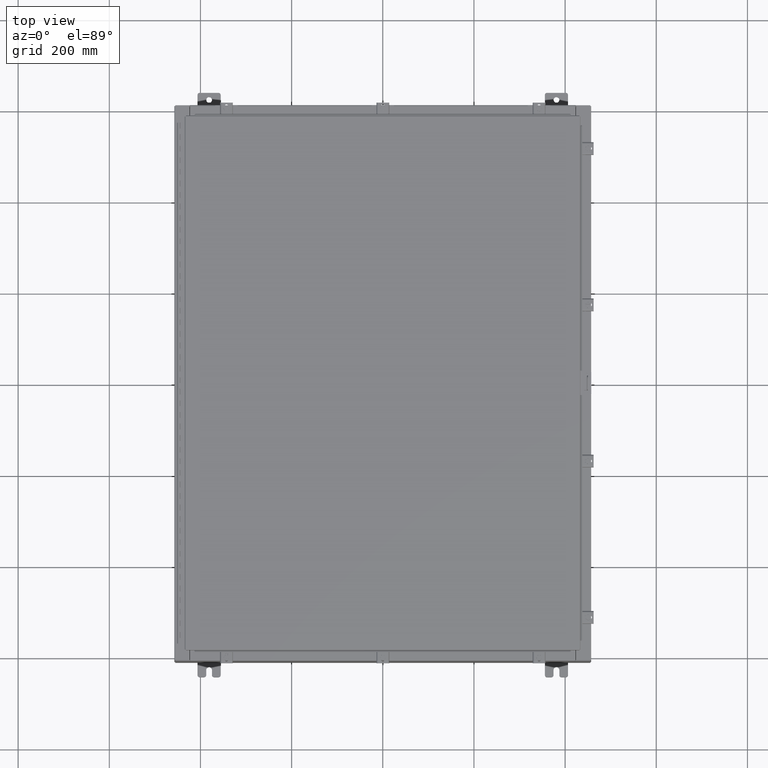
[diagram: clean part render]
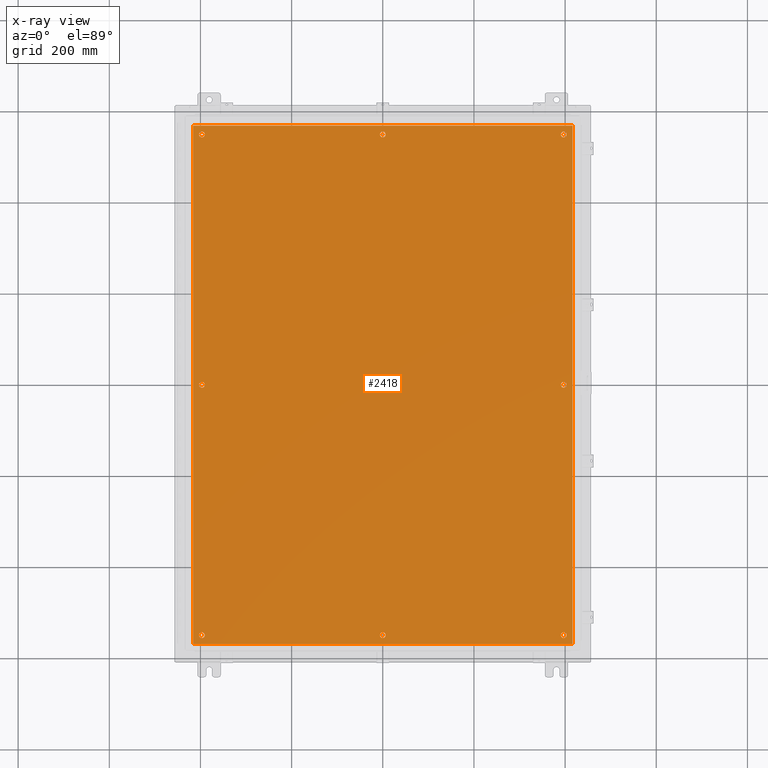
[diagram: x-ray — body ghosted, one internal face saturated and labeled with its STEP entity id]
A machine part, top view, then the same camera in x-ray: the body is ghosted and one INTERNAL B-rep face — a face not visible from any outside direction — is saturated and labeled: STEP entity #2418.
In plain terms, the highlighted planar face has unit normal (0, 0, -1).
Its self-contained STEP definition (entity closure, byte-faithful):
#304 = DIRECTION ( 'NONE',  ( -1.000000000000000000, 0.0000000000000000000, 0.0000000000000000000 ) ) ;
#646 = DIRECTION ( 'NONE',  ( -1.000000000000000000, 0.0000000000000000000, 0.0000000000000000000 ) ) ;
#719 = FACE_BOUND ( 'NONE', #45632, .T. ) ;
#751 = VECTOR ( 'NONE', #18937, 39.37007874015748100 ) ;
#1344 = DIRECTION ( 'NONE',  ( -1.000000000000000000, 0.0000000000000000000, 0.0000000000000000000 ) ) ;
#1751 = CIRCLE ( 'NONE', #25804, 0.2499999999999987000 ) ;
#1990 = DIRECTION ( 'NONE',  ( -1.000000000000000000, 0.0000000000000000000, 0.0000000000000000000 ) ) ;
#2049 = FACE_BOUND ( 'NONE', #36787, .T. ) ;
#2371 = CARTESIAN_POINT ( 'NONE',  ( -15.37500000000000000, -8.298848852119578500E-016, -0.1040000000000000400 ) ) ;
#2418 = ADVANCED_FACE ( 'NONE', ( #2049, #23384, #47493, #12079, #34773, #719, #44824, #33433, #22041 ), #34643, .T. ) ;
#3423 = EDGE_LOOP ( 'NONE', ( #48437, #52146 ) ) ;
#3543 = DIRECTION ( 'NONE',  ( -0.0000000000000000000, -0.0000000000000000000, 1.000000000000000000 ) ) ;
#3985 = CARTESIAN_POINT ( 'NONE',  ( 15.62500000000000200, 2.997136362123521200E-015, -0.1040000000000000400 ) ) ;
#4033 = DIRECTION ( 'NONE',  ( 0.0000000000000000000, -1.000000000000000000, 0.0000000000000000000 ) ) ;
#4282 = CIRCLE ( 'NONE', #29168, 0.2500000000000008900 ) ;
#4411 = VERTEX_POINT ( 'NONE', #30776 ) ;
#5066 = VERTEX_POINT ( 'NONE', #30901 ) ;
#5188 = DIRECTION ( 'NONE',  ( 1.000000000000000000, -0.0000000000000000000, -0.0000000000000000000 ) ) ;
#5797 = ORIENTED_EDGE ( 'NONE', *, *, #11636, .T. ) ;
#6424 = DIRECTION ( 'NONE',  ( -0.0000000000000000000, -0.0000000000000000000, 1.000000000000000000 ) ) ;
#6664 = DIRECTION ( 'NONE',  ( -0.0000000000000000000, -0.0000000000000000000, 1.000000000000000000 ) ) ;
#6931 = LINE ( 'NONE', #38192, #39671 ) ;
#7341 = AXIS2_PLACEMENT_3D ( 'NONE', #39182, #13556, #43470 ) ;
#7983 = VERTEX_POINT ( 'NONE', #8324 ) ;
#8162 = CARTESIAN_POINT ( 'NONE',  ( 0.0000000000000000000, -21.62500000000000400, -0.1040000000000000400 ) ) ;
#8275 = DIRECTION ( 'NONE',  ( -1.000000000000000000, 0.0000000000000000000, 0.0000000000000000000 ) ) ;
#8324 = CARTESIAN_POINT ( 'NONE',  ( 15.87500000000000200, 21.62500000000000400, -0.1040000000000000400 ) ) ;
#8367 = CIRCLE ( 'NONE', #25337, 0.2500000000000008900 ) ;
#8629 = CARTESIAN_POINT ( 'NONE',  ( 0.2499999999999998600, 21.62500000000000400, -0.1040000000000000400 ) ) ;
#8703 = CIRCLE ( 'NONE', #21581, 0.2500000000000008900 ) ;
#9046 = CIRCLE ( 'NONE', #20881, 0.2500000000000008900 ) ;
#9206 = VERTEX_POINT ( 'NONE', #29826 ) ;
#9225 = VERTEX_POINT ( 'NONE', #47040 ) ;
#9236 = VERTEX_POINT ( 'NONE', #13027 ) ;
#9467 = ORIENTED_EDGE ( 'NONE', *, *, #11621, .T. ) ;
#9956 = CIRCLE ( 'NONE', #14739, 0.2499999999999987000 ) ;
#10138 = EDGE_CURVE ( 'NONE', #40437, #42621, #29806, .T. ) ;
#10140 = EDGE_CURVE ( 'NONE', #29569, #7983, #18425, .T. ) ;
#10192 = ORIENTED_EDGE ( 'NONE', *, *, #17894, .T. ) ;
#10198 = CARTESIAN_POINT ( 'NONE',  ( -15.62500000000000500, 21.62500000000000400, -0.1040000000000000400 ) ) ;
#11621 = EDGE_CURVE ( 'NONE', #4411, #23656, #43153, .T. ) ;
#11636 = EDGE_CURVE ( 'NONE', #23656, #4411, #9046, .T. ) ;
#11892 = EDGE_CURVE ( 'NONE', #9225, #9236, #51123, .T. ) ;
#12079 = FACE_BOUND ( 'NONE', #17066, .T. ) ;
#12232 = DIRECTION ( 'NONE',  ( -0.0000000000000000000, -0.0000000000000000000, 1.000000000000000000 ) ) ;
#12335 = AXIS2_PLACEMENT_3D ( 'NONE', #10198, #40130, #14486 ) ;
#12424 = EDGE_CURVE ( 'NONE', #40752, #22919, #4282, .T. ) ;
#12457 = DIRECTION ( 'NONE',  ( -1.000000000000000000, 0.0000000000000000000, 0.0000000000000000000 ) ) ;
#13027 = CARTESIAN_POINT ( 'NONE',  ( -15.37500000000000500, -21.62500000000000400, -0.1040000000000000400 ) ) ;
#13202 = AXIS2_PLACEMENT_3D ( 'NONE', #19873, #49821, #24147 ) ;
#13237 = ORIENTED_EDGE ( 'NONE', *, *, #28799, .F. ) ;
#13325 = VERTEX_POINT ( 'NONE', #26992 ) ;
#13550 = AXIS2_PLACEMENT_3D ( 'NONE', #51678, #17621, #47545 ) ;
#13556 = DIRECTION ( 'NONE',  ( -0.0000000000000000000, -0.0000000000000000000, 1.000000000000000000 ) ) ;
#13739 = CARTESIAN_POINT ( 'NONE',  ( 15.62500000000000200, 2.997136362123521200E-015, -0.1040000000000000400 ) ) ;
#14279 = ORIENTED_EDGE ( 'NONE', *, *, #14893, .T. ) ;
#14461 = VERTEX_POINT ( 'NONE', #15010 ) ;
#14486 = DIRECTION ( 'NONE',  ( -1.000000000000000000, 0.0000000000000000000, 0.0000000000000000000 ) ) ;
#14660 = CARTESIAN_POINT ( 'NONE',  ( 16.38300000000000600, -22.38300000000000300, -0.1040000000000008600 ) ) ;
#14739 = AXIS2_PLACEMENT_3D ( 'NONE', #37823, #12232, #42119 ) ;
#14893 = EDGE_CURVE ( 'NONE', #27877, #35162, #24003, .T. ) ;
#15010 = CARTESIAN_POINT ( 'NONE',  ( -16.38299999999999600, -22.38300000000000300, -0.1040000000000009900 ) ) ;
#15233 = ORIENTED_EDGE ( 'NONE', *, *, #32711, .F. ) ;
#16179 = EDGE_CURVE ( 'NONE', #33699, #40962, #53346, .T. ) ;
#16213 = CARTESIAN_POINT ( 'NONE',  ( 0.2500000000000011700, -21.62500000000000400, -0.1040000000000000400 ) ) ;
#16692 = AXIS2_PLACEMENT_3D ( 'NONE', #29098, #3543, #33379 ) ;
#17066 = EDGE_LOOP ( 'NONE', ( #37576, #10192 ) ) ;
#17621 = DIRECTION ( 'NONE',  ( 0.0000000000000000000, 0.0000000000000000000, -1.000000000000000000 ) ) ;
#17894 = EDGE_CURVE ( 'NONE', #42621, #40437, #8367, .T. ) ;
#18002 = DIRECTION ( 'NONE',  ( -1.000000000000000000, 0.0000000000000000000, 0.0000000000000000000 ) ) ;
#18375 = CIRCLE ( 'NONE', #16692, 0.2499999999999987000 ) ;
#18425 = CIRCLE ( 'NONE', #40876, 0.2499999999999987000 ) ;
#18508 = ORIENTED_EDGE ( 'NONE', *, *, #51720, .T. ) ;
#18675 = DIRECTION ( 'NONE',  ( -0.0000000000000000000, -0.0000000000000000000, 1.000000000000000000 ) ) ;
#18937 = DIRECTION ( 'NONE',  ( 0.0000000000000000000, 1.000000000000000000, 0.0000000000000000000 ) ) ;
#19873 = CARTESIAN_POINT ( 'NONE',  ( 15.62500000000000400, -21.62500000000000400, -0.1040000000000000400 ) ) ;
#20099 = VERTEX_POINT ( 'NONE', #8629 ) ;
#20641 = EDGE_LOOP ( 'NONE', ( #18508, #41551 ) ) ;
#20881 = AXIS2_PLACEMENT_3D ( 'NONE', #53194, #27539, #1990 ) ;
#21401 = ORIENTED_EDGE ( 'NONE', *, *, #51841, .T. ) ;
#21581 = AXIS2_PLACEMENT_3D ( 'NONE', #13739, #43654, #18002 ) ;
#21696 = CARTESIAN_POINT ( 'NONE',  ( 15.87500000000000200, 2.997136362123521200E-015, -0.1040000000000000400 ) ) ;
#22041 = FACE_OUTER_BOUND ( 'NONE', #46538, .T. ) ;
#22130 = ORIENTED_EDGE ( 'NONE', *, *, #16179, .T. ) ;
#22919 = VERTEX_POINT ( 'NONE', #50353 ) ;
#23346 = DIRECTION ( 'NONE',  ( -0.0000000000000000000, -0.0000000000000000000, 1.000000000000000000 ) ) ;
#23384 = FACE_BOUND ( 'NONE', #34406, .T. ) ;
#23611 = VECTOR ( 'NONE', #32435, 39.37007874015748100 ) ;
#23656 = VERTEX_POINT ( 'NONE', #29859 ) ;
#24003 = CIRCLE ( 'NONE', #24223, 0.2500000000000011700 ) ;
#24147 = DIRECTION ( 'NONE',  ( -1.000000000000000000, 0.0000000000000000000, 0.0000000000000000000 ) ) ;
#24223 = AXIS2_PLACEMENT_3D ( 'NONE', #52546, #26900, #1344 ) ;
#25337 = AXIS2_PLACEMENT_3D ( 'NONE', #32210, #6664, #36542 ) ;
#25804 = AXIS2_PLACEMENT_3D ( 'NONE', #51834, #26182, #646 ) ;
#25843 = DIRECTION ( 'NONE',  ( -0.0000000000000000000, -0.0000000000000000000, 1.000000000000000000 ) ) ;
#26182 = DIRECTION ( 'NONE',  ( -0.0000000000000000000, -0.0000000000000000000, 1.000000000000000000 ) ) ;
#26900 = DIRECTION ( 'NONE',  ( -0.0000000000000000000, -0.0000000000000000000, 1.000000000000000000 ) ) ;
#26992 = CARTESIAN_POINT ( 'NONE',  ( -16.38299999999999600, 22.38300000000000300, -0.1040000000000008600 ) ) ;
#27539 = DIRECTION ( 'NONE',  ( -0.0000000000000000000, -0.0000000000000000000, 1.000000000000000000 ) ) ;
#27865 = CARTESIAN_POINT ( 'NONE',  ( 16.38300000000000600, -22.38300000000000300, -0.1040000000000008600 ) ) ;
#27877 = VERTEX_POINT ( 'NONE', #34397 ) ;
#28432 = AXIS2_PLACEMENT_3D ( 'NONE', #51473, #25843, #304 ) ;
#28799 = EDGE_CURVE ( 'NONE', #5066, #13325, #46398, .T. ) ;
#29098 = CARTESIAN_POINT ( 'NONE',  ( 15.62500000000000400, -21.62500000000000400, -0.1040000000000000400 ) ) ;
#29168 = AXIS2_PLACEMENT_3D ( 'NONE', #3985, #33831, #8275 ) ;
#29569 = VERTEX_POINT ( 'NONE', #37788 ) ;
#29727 = CARTESIAN_POINT ( 'NONE',  ( -15.87500000000000200, -7.992687152332741600E-016, -0.1040000000000000400 ) ) ;
#29806 = CIRCLE ( 'NONE', #38007, 0.2500000000000008900 ) ;
#29826 = CARTESIAN_POINT ( 'NONE',  ( -0.2499999999999998600, 21.62500000000000400, -0.1040000000000000400 ) ) ;
#29859 = CARTESIAN_POINT ( 'NONE',  ( -15.87500000000000700, 21.62500000000000400, -0.1040000000000000400 ) ) ;
#30776 = CARTESIAN_POINT ( 'NONE',  ( -15.37500000000000500, 21.62500000000000400, -0.1040000000000000400 ) ) ;
#30901 = CARTESIAN_POINT ( 'NONE',  ( 16.38300000000000600, 22.38300000000000300, -0.1040000000000008600 ) ) ;
#31033 = EDGE_CURVE ( 'NONE', #20099, #9206, #40143, .T. ) ;
#31069 = EDGE_CURVE ( 'NONE', #22919, #40752, #8703, .T. ) ;
#31370 = EDGE_LOOP ( 'NONE', ( #35733, #32948 ) ) ;
#31895 = ORIENTED_EDGE ( 'NONE', *, *, #42078, .F. ) ;
#31964 = CARTESIAN_POINT ( 'NONE',  ( 15.62500000000000400, 21.62500000000000400, -0.1040000000000000400 ) ) ;
#32019 = LINE ( 'NONE', #39007, #52097 ) ;
#32210 = CARTESIAN_POINT ( 'NONE',  ( -15.62500000000000200, -8.298848852119578500E-016, -0.1040000000000000400 ) ) ;
#32435 = DIRECTION ( 'NONE',  ( -1.000000000000000000, -0.0000000000000000000, -0.0000000000000000000 ) ) ;
#32711 = EDGE_CURVE ( 'NONE', #34502, #5066, #47523, .T. ) ;
#32948 = ORIENTED_EDGE ( 'NONE', *, *, #11892, .T. ) ;
#33379 = DIRECTION ( 'NONE',  ( -1.000000000000000000, 0.0000000000000000000, 0.0000000000000000000 ) ) ;
#33433 = FACE_BOUND ( 'NONE', #38971, .T. ) ;
#33699 = VERTEX_POINT ( 'NONE', #43133 ) ;
#33771 = EDGE_CURVE ( 'NONE', #14461, #34502, #32019, .T. ) ;
#33831 = DIRECTION ( 'NONE',  ( -0.0000000000000000000, -0.0000000000000000000, 1.000000000000000000 ) ) ;
#34397 = CARTESIAN_POINT ( 'NONE',  ( -0.2500000000000011700, -21.62500000000000400, -0.1040000000000000400 ) ) ;
#34406 = EDGE_LOOP ( 'NONE', ( #47574, #21401 ) ) ;
#34502 = VERTEX_POINT ( 'NONE', #27865 ) ;
#34643 = PLANE ( 'NONE',  #13550 ) ;
#34773 = FACE_BOUND ( 'NONE', #31370, .T. ) ;
#35162 = VERTEX_POINT ( 'NONE', #16213 ) ;
#35301 = ORIENTED_EDGE ( 'NONE', *, *, #39961, .T. ) ;
#35719 = ORIENTED_EDGE ( 'NONE', *, *, #48032, .T. ) ;
#35733 = ORIENTED_EDGE ( 'NONE', *, *, #44609, .T. ) ;
#36090 = CARTESIAN_POINT ( 'NONE',  ( 15.87500000000000200, -21.62500000000000400, -0.1040000000000000400 ) ) ;
#36278 = DIRECTION ( 'NONE',  ( -1.000000000000000000, 0.0000000000000000000, 0.0000000000000000000 ) ) ;
#36542 = DIRECTION ( 'NONE',  ( -1.000000000000000000, 0.0000000000000000000, 0.0000000000000000000 ) ) ;
#36787 = EDGE_LOOP ( 'NONE', ( #35719, #14279 ) ) ;
#37576 = ORIENTED_EDGE ( 'NONE', *, *, #10138, .T. ) ;
#37788 = CARTESIAN_POINT ( 'NONE',  ( 15.37500000000000500, 21.62500000000000400, -0.1040000000000000400 ) ) ;
#37823 = CARTESIAN_POINT ( 'NONE',  ( -15.62500000000000400, -21.62500000000000400, -0.1040000000000000400 ) ) ;
#38007 = AXIS2_PLACEMENT_3D ( 'NONE', #48982, #23346, #53313 ) ;
#38037 = DIRECTION ( 'NONE',  ( -0.0000000000000000000, -0.0000000000000000000, 1.000000000000000000 ) ) ;
#38192 = CARTESIAN_POINT ( 'NONE',  ( -16.38299999999999600, 22.38300000000000300, -0.1040000000000008600 ) ) ;
#38971 = EDGE_LOOP ( 'NONE', ( #9467, #5797 ) ) ;
#39007 = CARTESIAN_POINT ( 'NONE',  ( -16.49999999999999600, -22.38300000000000300, -0.1040000000000009900 ) ) ;
#39182 = CARTESIAN_POINT ( 'NONE',  ( 0.0000000000000000000, 21.62500000000000400, -0.1040000000000000400 ) ) ;
#39671 = VECTOR ( 'NONE', #4033, 39.37007874015748100 ) ;
#39961 = EDGE_CURVE ( 'NONE', #40962, #33699, #18375, .T. ) ;
#40130 = DIRECTION ( 'NONE',  ( -0.0000000000000000000, -0.0000000000000000000, 1.000000000000000000 ) ) ;
#40143 = CIRCLE ( 'NONE', #7341, 0.2499999999999998600 ) ;
#40437 = VERTEX_POINT ( 'NONE', #2371 ) ;
#40752 = VERTEX_POINT ( 'NONE', #21696 ) ;
#40876 = AXIS2_PLACEMENT_3D ( 'NONE', #31964, #6424, #36278 ) ;
#40962 = VERTEX_POINT ( 'NONE', #36090 ) ;
#41551 = ORIENTED_EDGE ( 'NONE', *, *, #10140, .T. ) ;
#41827 = AXIS2_PLACEMENT_3D ( 'NONE', #8162, #38037, #12457 ) ;
#42078 = EDGE_CURVE ( 'NONE', #13325, #14461, #6931, .T. ) ;
#42119 = DIRECTION ( 'NONE',  ( -1.000000000000000000, 0.0000000000000000000, 0.0000000000000000000 ) ) ;
#42621 = VERTEX_POINT ( 'NONE', #29727 ) ;
#43133 = CARTESIAN_POINT ( 'NONE',  ( 15.37500000000000500, -21.62500000000000400, -0.1040000000000000400 ) ) ;
#43153 = CIRCLE ( 'NONE', #12335, 0.2500000000000008900 ) ;
#43470 = DIRECTION ( 'NONE',  ( -1.000000000000000000, 0.0000000000000000000, 0.0000000000000000000 ) ) ;
#43654 = DIRECTION ( 'NONE',  ( -0.0000000000000000000, -0.0000000000000000000, 1.000000000000000000 ) ) ;
#44336 = CARTESIAN_POINT ( 'NONE',  ( 0.0000000000000000000, 21.62500000000000400, -0.1040000000000000400 ) ) ;
#44609 = EDGE_CURVE ( 'NONE', #9236, #9225, #9956, .T. ) ;
#44824 = FACE_BOUND ( 'NONE', #20641, .T. ) ;
#45362 = CARTESIAN_POINT ( 'NONE',  ( 16.50000000000000700, 22.38300000000000300, -0.1040000000000009900 ) ) ;
#45632 = EDGE_LOOP ( 'NONE', ( #35301, #22130 ) ) ;
#46398 = LINE ( 'NONE', #45362, #23611 ) ;
#46538 = EDGE_LOOP ( 'NONE', ( #46850, #31895, #13237, #15233 ) ) ;
#46850 = ORIENTED_EDGE ( 'NONE', *, *, #33771, .F. ) ;
#47040 = CARTESIAN_POINT ( 'NONE',  ( -15.87500000000000200, -21.62500000000000400, -0.1040000000000000400 ) ) ;
#47493 = FACE_BOUND ( 'NONE', #3423, .T. ) ;
#47523 = LINE ( 'NONE', #14660, #751 ) ;
#47545 = DIRECTION ( 'NONE',  ( -1.000000000000000000, 0.0000000000000000000, -0.0000000000000000000 ) ) ;
#47574 = ORIENTED_EDGE ( 'NONE', *, *, #31033, .T. ) ;
#48032 = EDGE_CURVE ( 'NONE', #35162, #27877, #50952, .T. ) ;
#48437 = ORIENTED_EDGE ( 'NONE', *, *, #12424, .T. ) ;
#48604 = DIRECTION ( 'NONE',  ( -1.000000000000000000, 0.0000000000000000000, 0.0000000000000000000 ) ) ;
#48731 = AXIS2_PLACEMENT_3D ( 'NONE', #44336, #18675, #48604 ) ;
#48982 = CARTESIAN_POINT ( 'NONE',  ( -15.62500000000000200, -8.298848852119578500E-016, -0.1040000000000000400 ) ) ;
#49245 = CIRCLE ( 'NONE', #48731, 0.2499999999999998600 ) ;
#49821 = DIRECTION ( 'NONE',  ( -0.0000000000000000000, -0.0000000000000000000, 1.000000000000000000 ) ) ;
#50353 = CARTESIAN_POINT ( 'NONE',  ( 15.37500000000000000, 3.027752532102204900E-015, -0.1040000000000000400 ) ) ;
#50952 = CIRCLE ( 'NONE', #41827, 0.2500000000000011700 ) ;
#51123 = CIRCLE ( 'NONE', #28432, 0.2499999999999987000 ) ;
#51473 = CARTESIAN_POINT ( 'NONE',  ( -15.62500000000000400, -21.62500000000000400, -0.1040000000000000400 ) ) ;
#51678 = CARTESIAN_POINT ( 'NONE',  ( 0.0000000000000000000, 0.0000000000000000000, -0.1040000000000000400 ) ) ;
#51720 = EDGE_CURVE ( 'NONE', #7983, #29569, #1751, .T. ) ;
#51834 = CARTESIAN_POINT ( 'NONE',  ( 15.62500000000000400, 21.62500000000000400, -0.1040000000000000400 ) ) ;
#51841 = EDGE_CURVE ( 'NONE', #9206, #20099, #49245, .T. ) ;
#52097 = VECTOR ( 'NONE', #5188, 39.37007874015748100 ) ;
#52146 = ORIENTED_EDGE ( 'NONE', *, *, #31069, .T. ) ;
#52546 = CARTESIAN_POINT ( 'NONE',  ( 0.0000000000000000000, -21.62500000000000400, -0.1040000000000000400 ) ) ;
#53194 = CARTESIAN_POINT ( 'NONE',  ( -15.62500000000000500, 21.62500000000000400, -0.1040000000000000400 ) ) ;
#53313 = DIRECTION ( 'NONE',  ( -1.000000000000000000, 0.0000000000000000000, 0.0000000000000000000 ) ) ;
#53346 = CIRCLE ( 'NONE', #13202, 0.2499999999999987000 ) ;